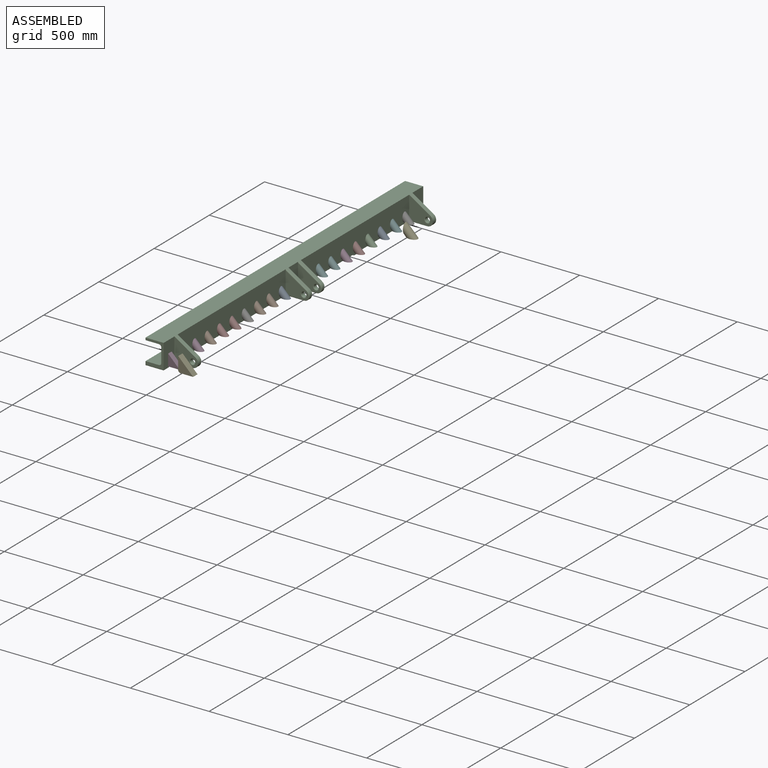
[diagram: assembled view]
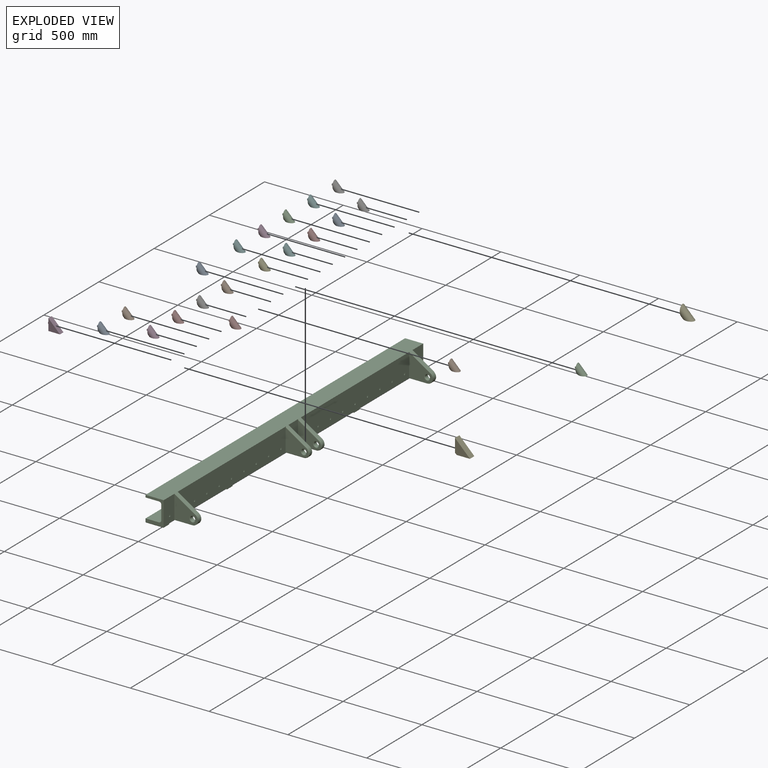
[diagram: exploded view]
GUIDED TOUR — MATED ASSEMBLY (Onshape document 05afbd872c7fb08d4eaf8b2c, AutoMate assembly 05afbd872c7fb08d4eaf8b2c_276a8236e02694150c11657f_0c8fe8149d820ef2f70c6690_default)

This assembly has 24 components, labeled P0..P23 below (a component is one placed occurrence of a part; the same part can appear more than once), held together by 23 mates. A mate is a constraint between two components; its type names the relative motion it leaves free:
  FASTENED — locks the two components together rigidly (no relative motion),
  SLIDER — leaves translation along the listed axis free.
Axis/direction vectors are unit vectors and 'through' points are millimeter coordinates, both in the assembly's world frame.

MATES
  1. FASTENED "Fastened 13": P10 <-> P21, direction (1.000, 0.000, 0.000) through (57.50, -839.80, 44.70) mm
  2. FASTENED "Fastened 5": P10 <-> P17, direction (1.000, 0.000, 0.000) through (57.50, -1959.80, 44.70) mm
  3. FASTENED "Fastened 7": P10 <-> P23, direction (1.000, 0.000, 0.000) through (57.50, -1735.80, 44.70) mm
  4. FASTENED "Fastened 17": P10 <-> P16, direction (1.000, 0.000, 0.000) through (57.50, -391.80, 44.70) mm
  5. FASTENED "Fastened 20": P10 <-> P5, direction (1.000, 0.000, 0.000) through (57.50, -279.80, 44.70) mm
  6. FASTENED "Fastened 15": P10 <-> P15, direction (1.000, 0.000, 0.000) through (57.50, -615.80, 44.70) mm
  7. SLIDER "Slider 1": P5 <-> P20, axis (-1.000, 0.000, 0.000) through (57.50, -279.80, 39.70) mm
  8. FASTENED "Fastened 18": P10 <-> P14, direction (1.000, 0.000, 0.000) through (57.50, -1623.80, 44.70) mm
  9. FASTENED "Fastened 8": P10 <-> P8, direction (1.000, 0.000, 0.000) through (57.50, -1287.80, 44.70) mm
  10. FASTENED "Fastened 9": P10 <-> P2, direction (1.000, 0.000, 0.000) through (57.50, -1175.80, 44.70) mm
  11. FASTENED "Fastened 14": P10 <-> P19, direction (1.000, 0.000, 0.000) through (57.50, -727.80, 44.70) mm
  12. FASTENED "Fastened 6": P10 <-> P7, direction (1.000, 0.000, 0.000) through (57.50, -1847.80, 44.70) mm
  13. FASTENED "Fastened 12": P10 <-> P13, direction (1.000, 0.000, 0.000) through (57.50, -951.80, 44.70) mm
  14. SLIDER "Slider 2": P11 <-> P4, axis (-1.000, 0.000, 0.000) through (57.50, -2295.80, 73.54) mm
  15. FASTENED "Fastened 19": P10 <-> P1, direction (1.000, 0.000, 0.000) through (57.50, -1511.80, 44.70) mm
  16. FASTENED "Fastened 22": P10 <-> P6, direction (1.000, 0.000, 0.000) through (57.50, -55.80, 44.70) mm
  17. FASTENED "Fastened 16": P10 <-> P18, direction (1.000, 0.000, 0.000) through (57.50, -503.80, 44.70) mm
  18. FASTENED "Fastened 21": P10 <-> P22, direction (1.000, 0.000, 0.000) through (57.50, -167.80, 44.70) mm
  19. FASTENED "Fastened 11": P10 <-> P12, direction (1.000, 0.000, 0.000) through (57.50, -1063.80, 44.70) mm
  20. FASTENED "Fastened 2": P10 <-> P11, direction (1.000, 0.000, 0.000) through (57.50, -2295.80, 44.70) mm
  21. FASTENED "Fastened 3": P10 <-> P0, direction (1.000, 0.000, 0.000) through (57.50, -2183.80, 44.70) mm
  22. FASTENED "Fastened 10": P10 <-> P9, direction (1.000, 0.000, 0.000) through (57.50, -1399.80, 44.70) mm
  23. FASTENED "Fastened 4": P10 <-> P3, direction (1.000, 0.000, 0.000) through (57.50, -2071.80, 44.70) mm

ASSEMBLY ORDER
  1. P23 — the base component [order verified]
  2. P14 [order verified]
  3. P9 [order verified]
  4. P8 [order verified]
  5. P12 [order verified]
  6. P13 [order verified]
  7. P21 [order verified]
  8. P19 [order verified]
  9. P15 [order verified]
  10. P18 [order verified]
  11. P16 [order verified]
  12. P5 [order verified]
  13. P22 [order verified]
  14. P7 [order verified]
  15. P17 [order verified]
  16. P3 [order verified]
  17. P10 [order verified]
  18. P2 [order verified]
  19. P1 [order verified]
  20. P0 [order verified]
  21. P6 [order verified]
  22. P20 [order verified]
  23. P4 [order verified]
  24. P11 [order verified]
Order-tag legend:
  [order verified] — this step's position reverses a verified removal order: the component was checked to insert without passing through the ones already placed.

Of the 24 components, 20 carry the full construction recipe — the FeatureScript program that regenerates the part's solid from scratch; the rest are supplied as boundary geometry only.
Because this assembly has more than 12 components, the tour below covers the 12 most significant ones individually (every recipe-attached component first, then the largest by part volume), in assembly order; the remaining 12 are summarized together in a grouped section at the end.
Each toured component is shown spotlighted twice — in the assembled view, then in the exploded view, where a leader line traces a displaced component back to its assembled socket (saturated green if recipe-attached, orange if geometry-only; every other component desaturated gray) — followed by its recipe or geometry summary and the mates that hold it.
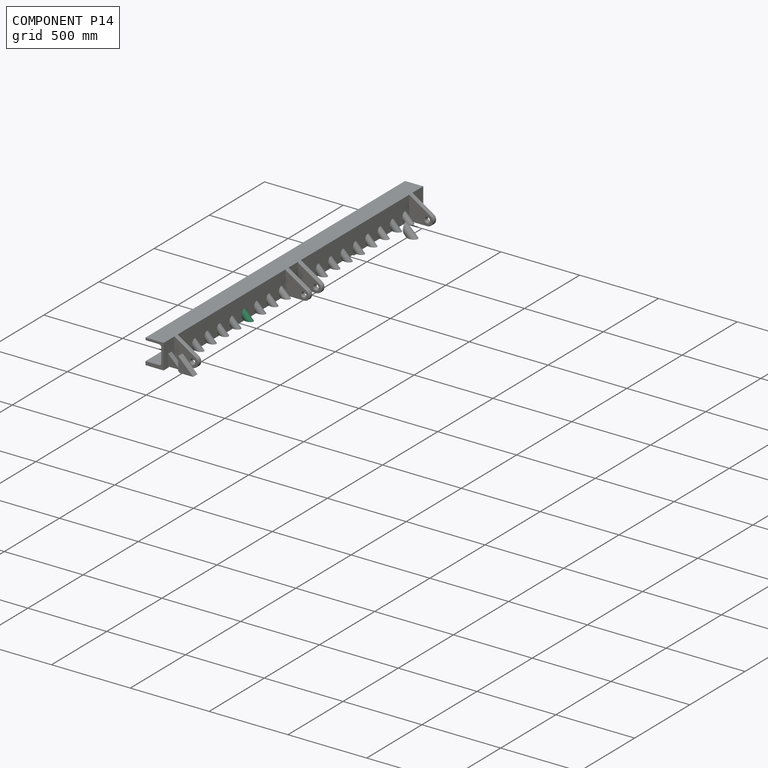
[diagram: component P14 — assembled]
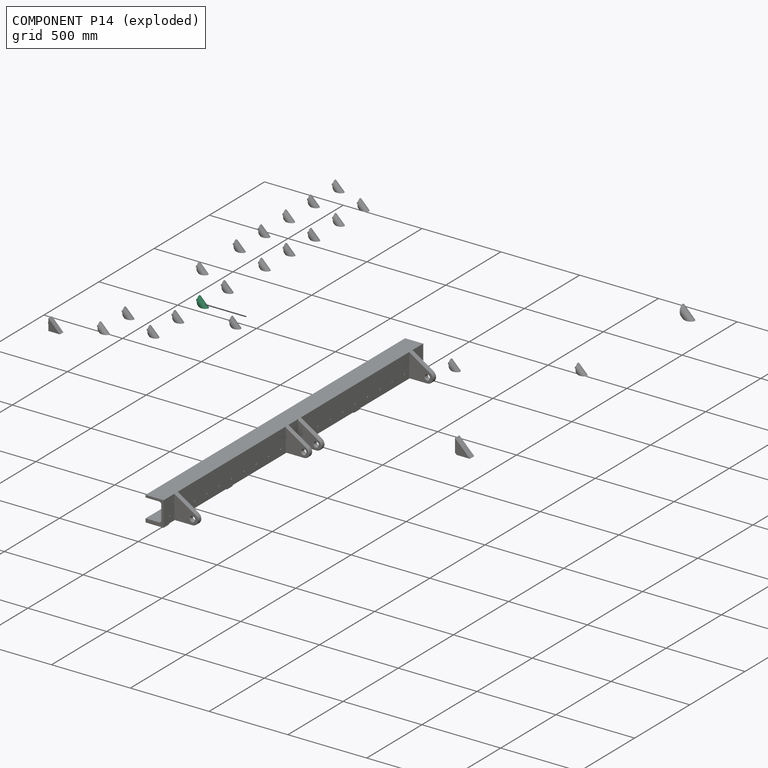
[diagram: component P14 — exploded]
COMPONENT P14 — same part as P0 (CADFS 00960571); its construction recipe is shown at P0.
Held by: FASTENED mate "Fastened 18" to P10.
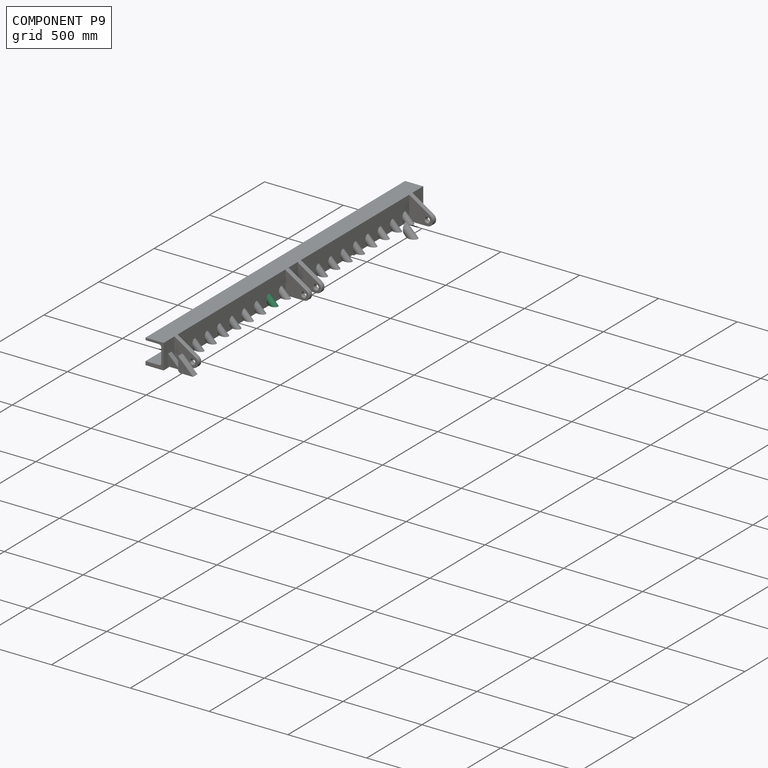
[diagram: component P9 — assembled]
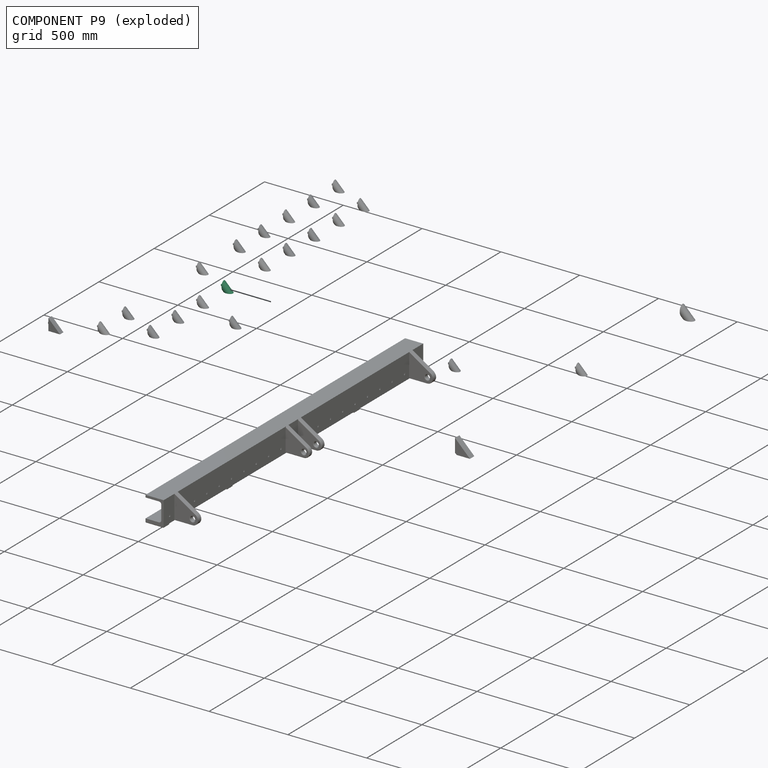
[diagram: component P9 — exploded]
COMPONENT P9 — same part as P0 (CADFS 00960571); its construction recipe is shown at P0.
Held by: FASTENED mate "Fastened 10" to P10.
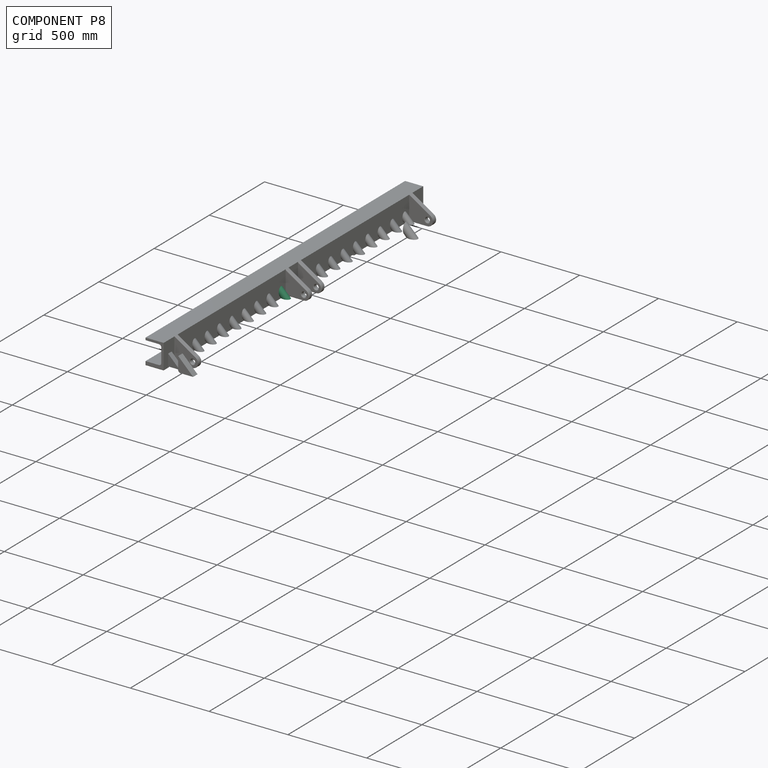
[diagram: component P8 — assembled]
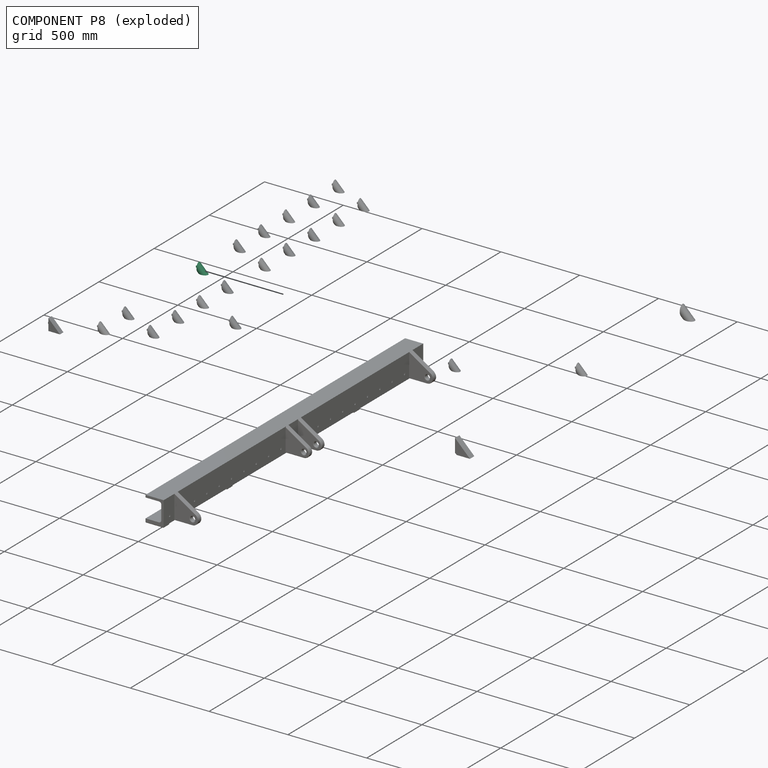
[diagram: component P8 — exploded]
COMPONENT P8 — same part as P0 (CADFS 00960571); its construction recipe is shown at P0.
Held by: FASTENED mate "Fastened 8" to P10.
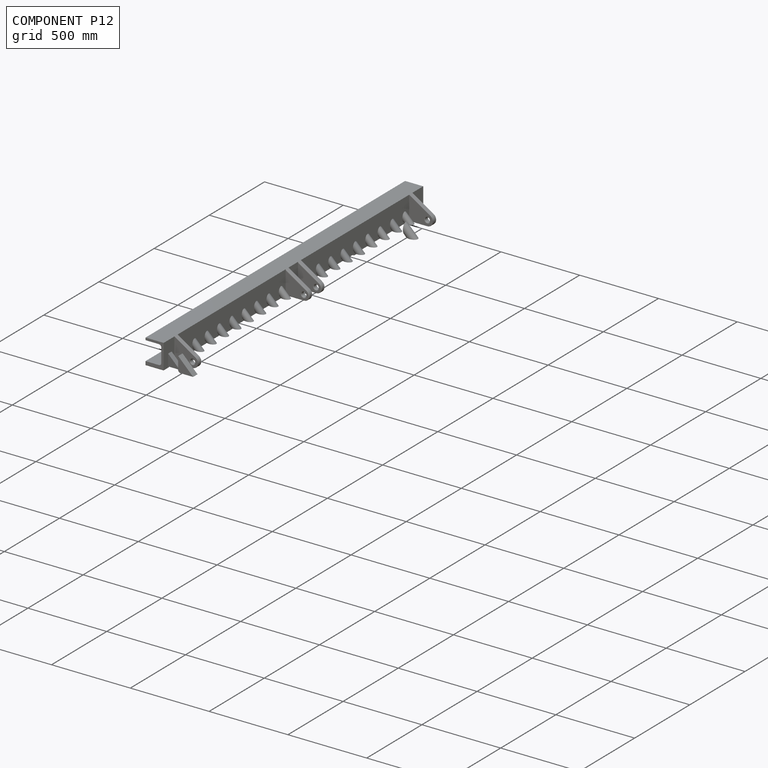
[diagram: component P12 — assembled]
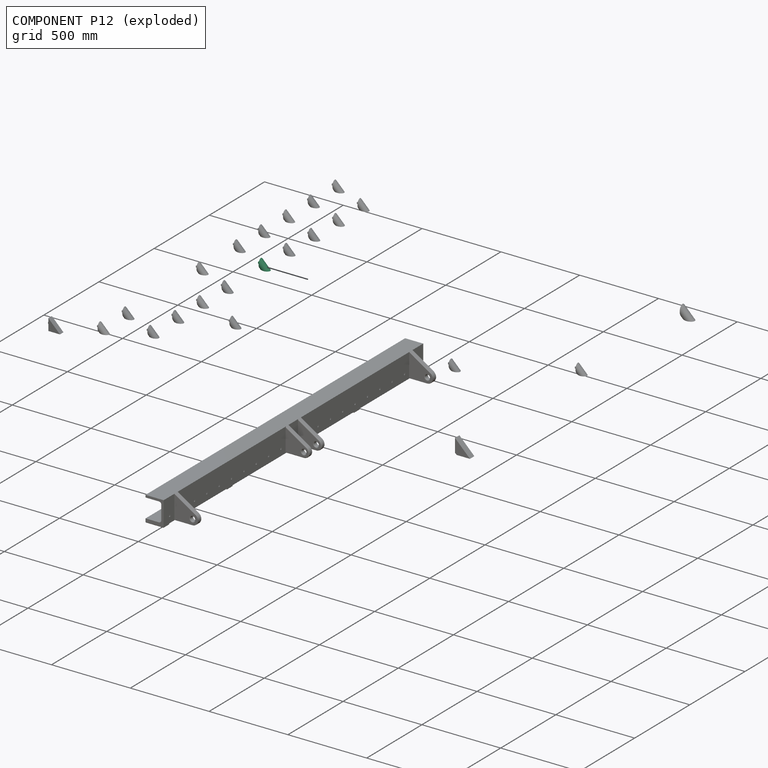
[diagram: component P12 — exploded]
COMPONENT P12 — same part as P0 (CADFS 00960571); its construction recipe is shown at P0.
Held by: FASTENED mate "Fastened 11" to P10.
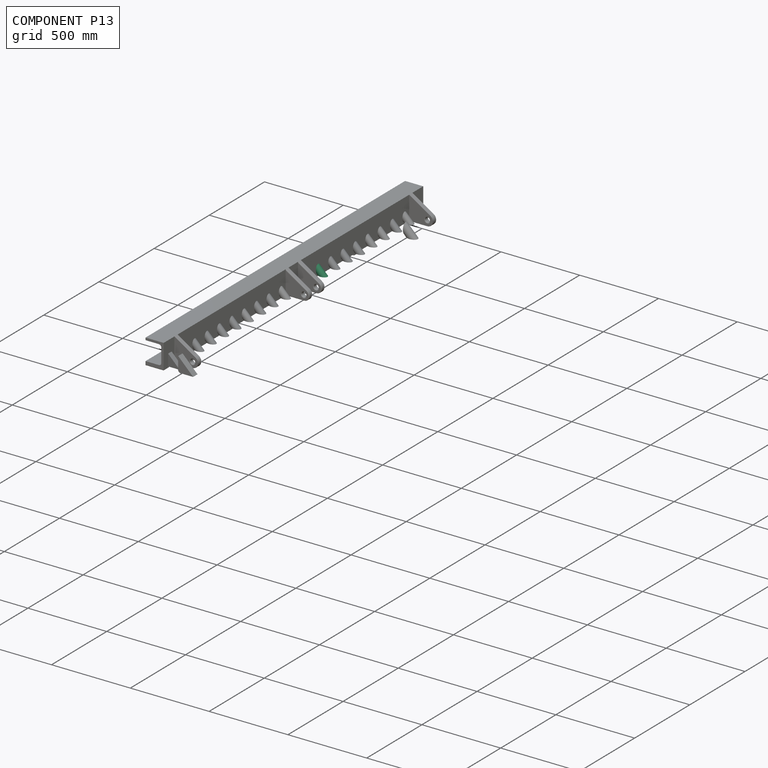
[diagram: component P13 — assembled]
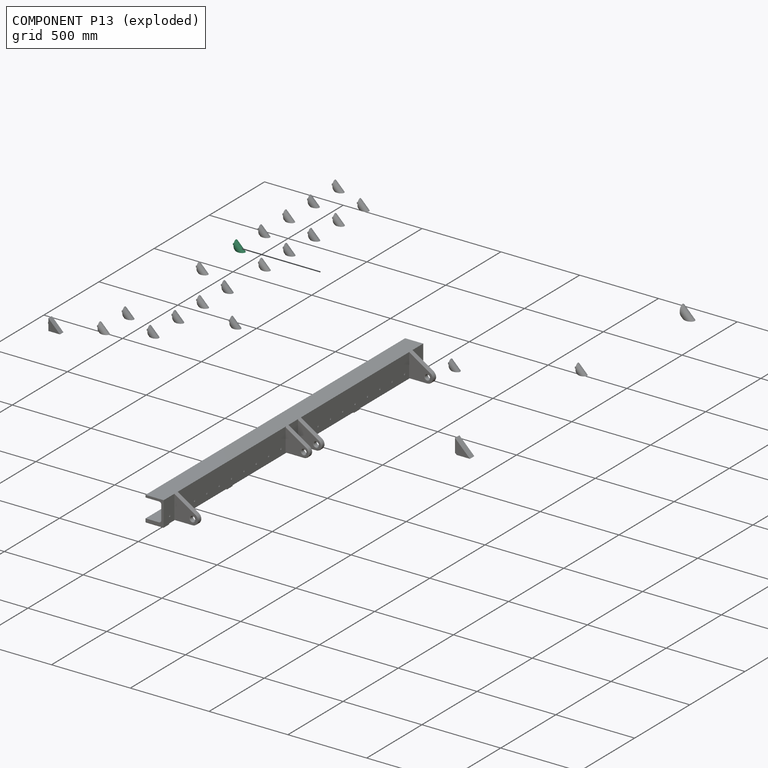
[diagram: component P13 — exploded]
COMPONENT P13 — same part as P0 (CADFS 00960571); its construction recipe is shown at P0.
Held by: FASTENED mate "Fastened 12" to P10.
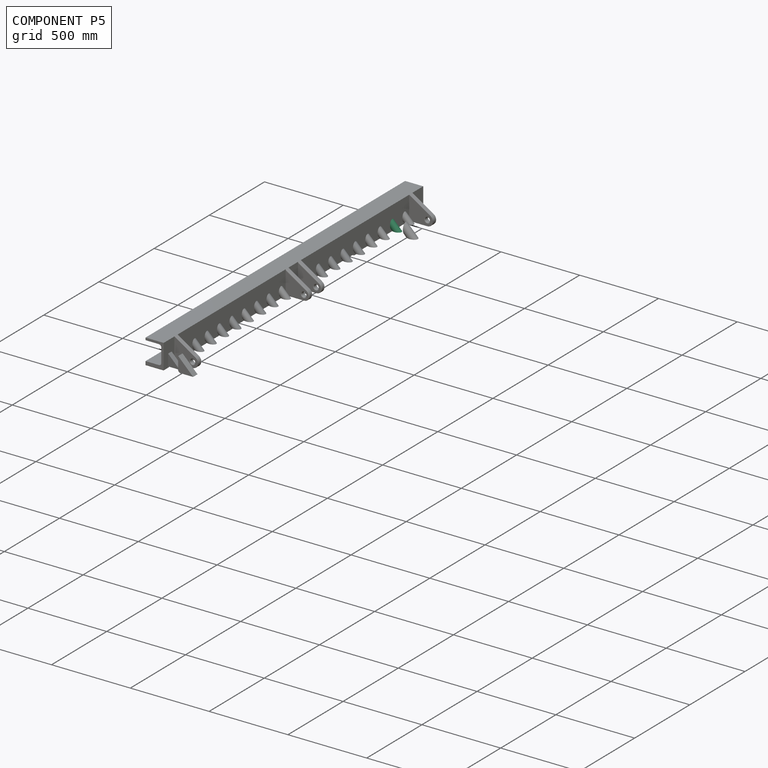
[diagram: component P5 — assembled]
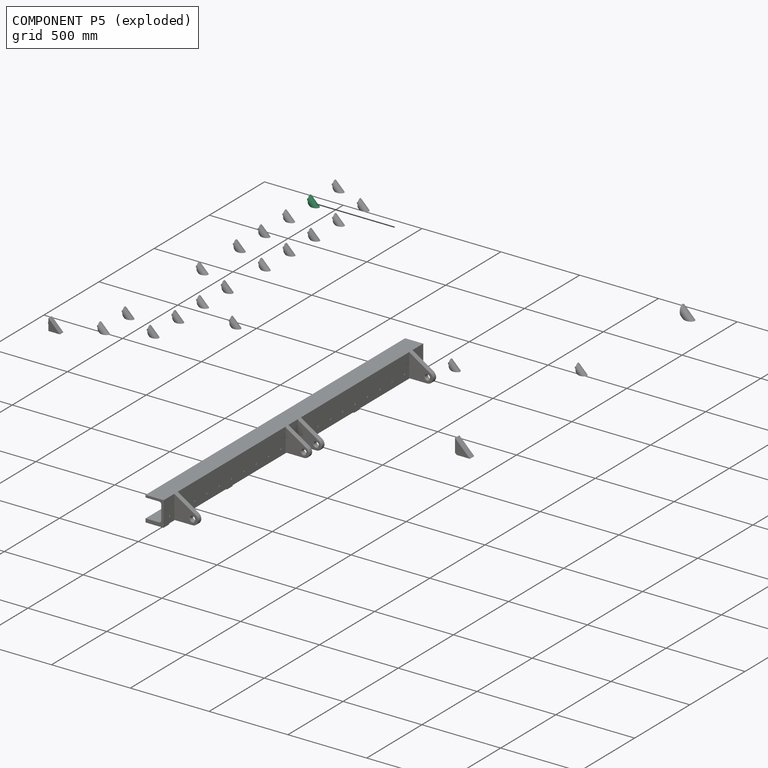
[diagram: component P5 — exploded]
COMPONENT P5 — same part as P0 (CADFS 00960571); its construction recipe is shown at P0.
Held by: FASTENED mate "Fastened 20" to P10; SLIDER mate "Slider 1" to P20.
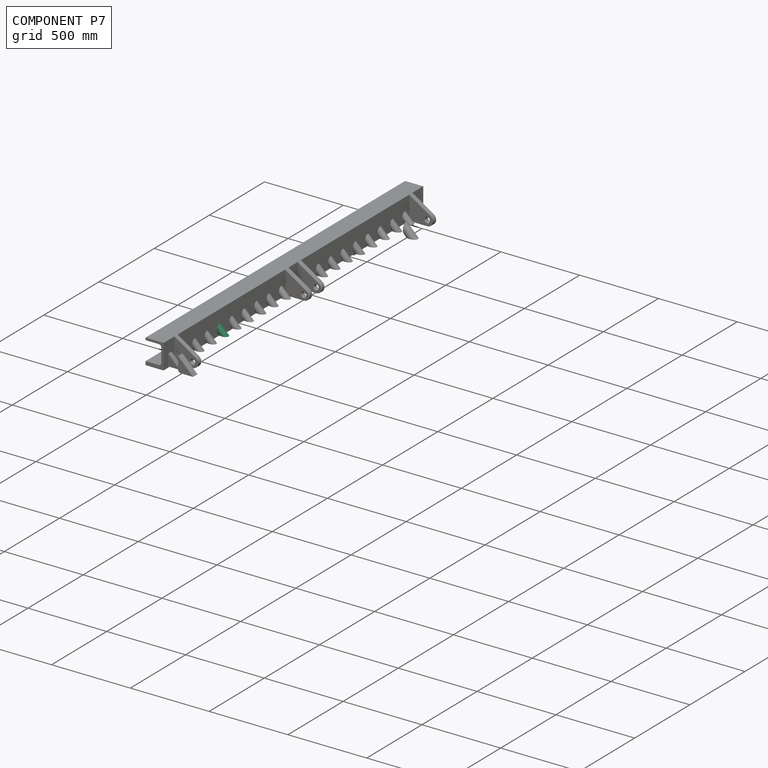
[diagram: component P7 — assembled]
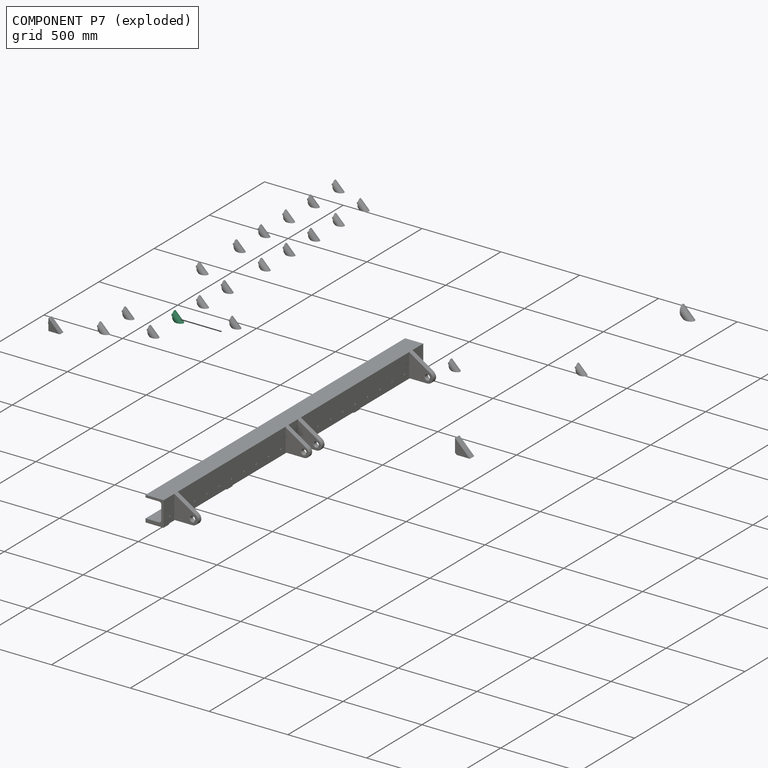
[diagram: component P7 — exploded]
COMPONENT P7 — same part as P0 (CADFS 00960571); its construction recipe is shown at P0.
Held by: FASTENED mate "Fastened 6" to P10.
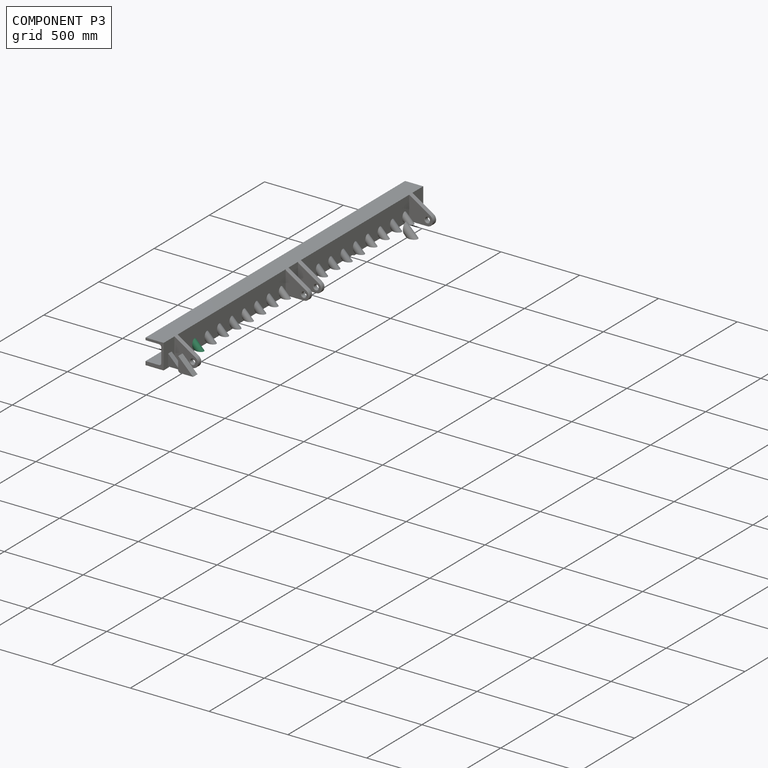
[diagram: component P3 — assembled]
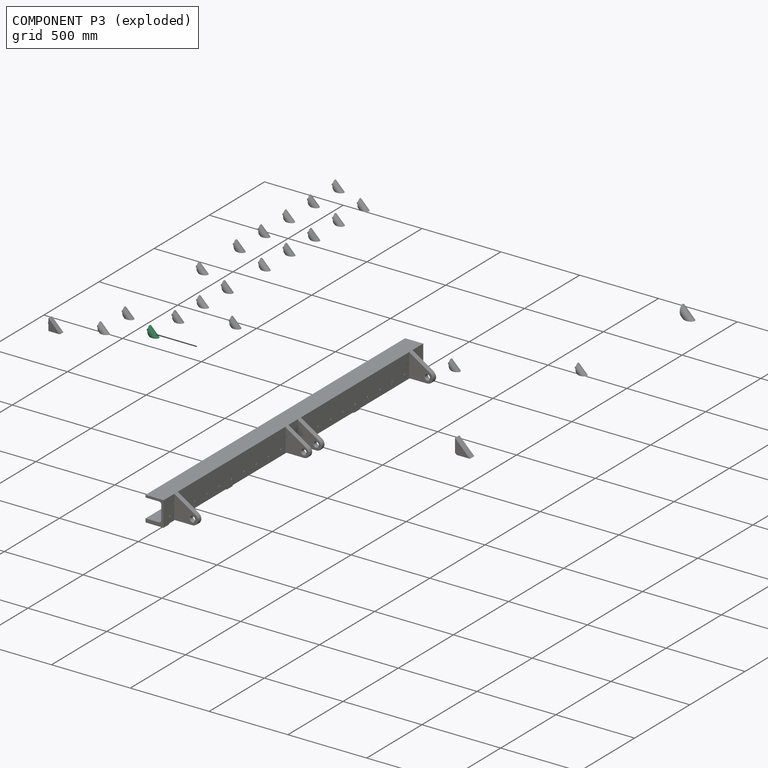
[diagram: component P3 — exploded]
COMPONENT P3 — same part as P0 (CADFS 00960571); its construction recipe is shown at P0.
Held by: FASTENED mate "Fastened 4" to P10.
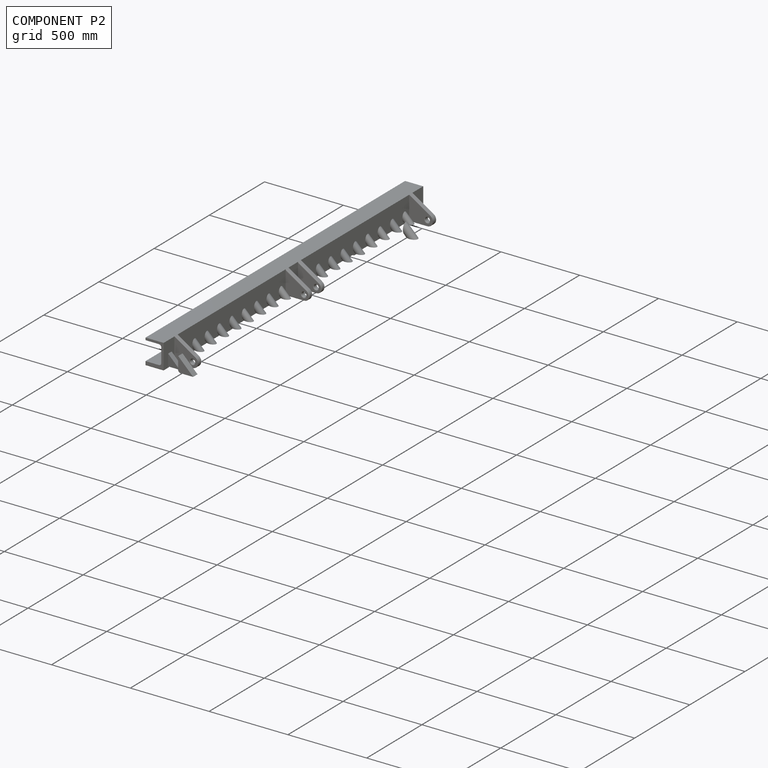
[diagram: component P2 — assembled]
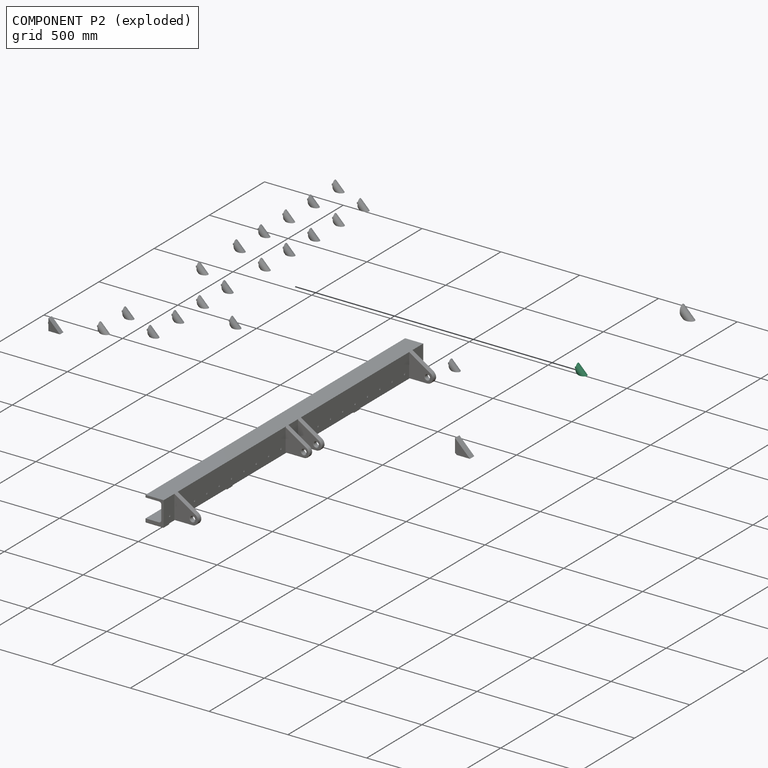
[diagram: component P2 — exploded]
COMPONENT P2 — same part as P0 (CADFS 00960571); its construction recipe is shown at P0.
Held by: FASTENED mate "Fastened 9" to P10.
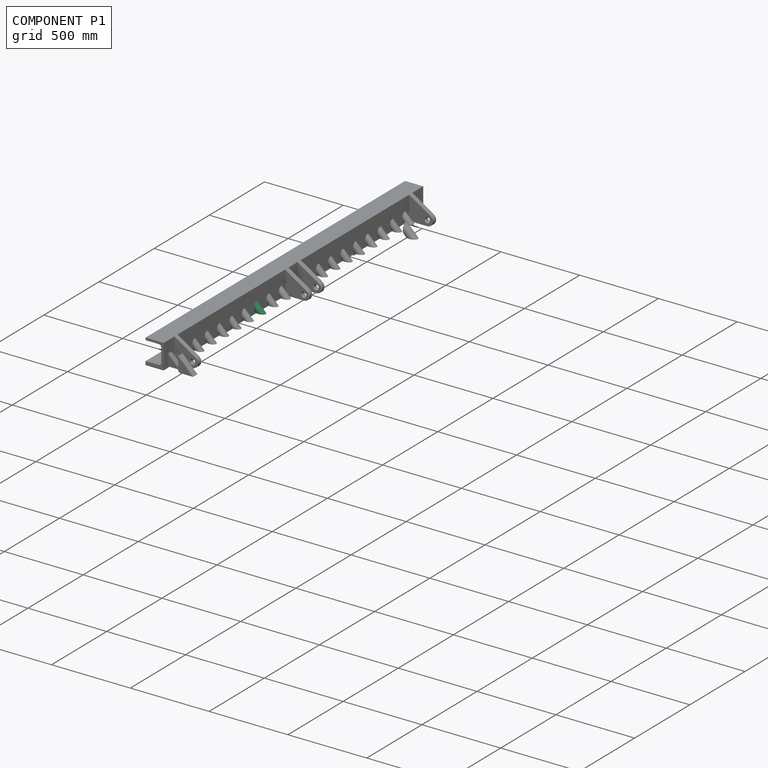
[diagram: component P1 — assembled]
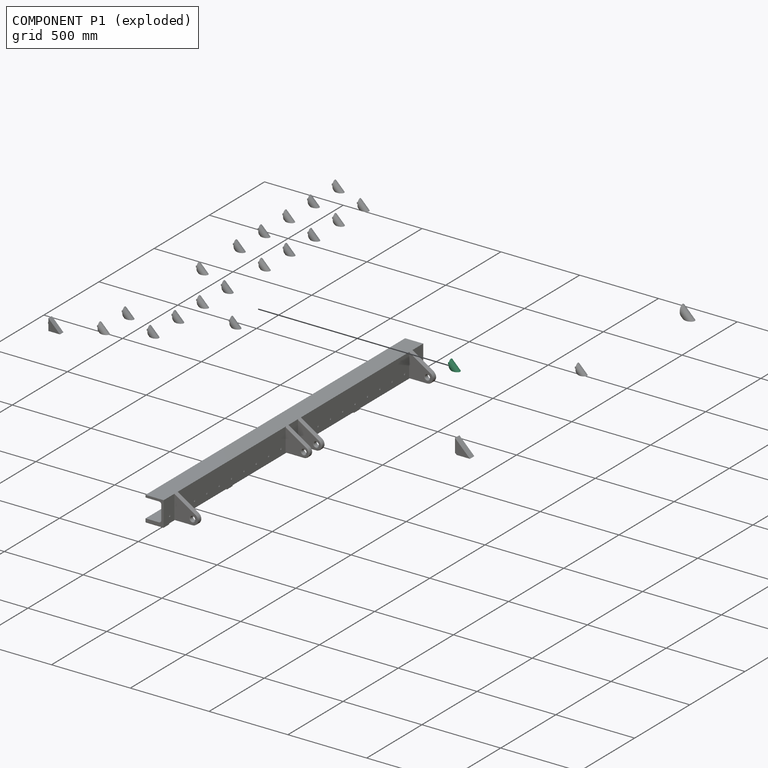
[diagram: component P1 — exploded]
COMPONENT P1 — same part as P0 (CADFS 00960571); its construction recipe is shown at P0.
Held by: FASTENED mate "Fastened 19" to P10.
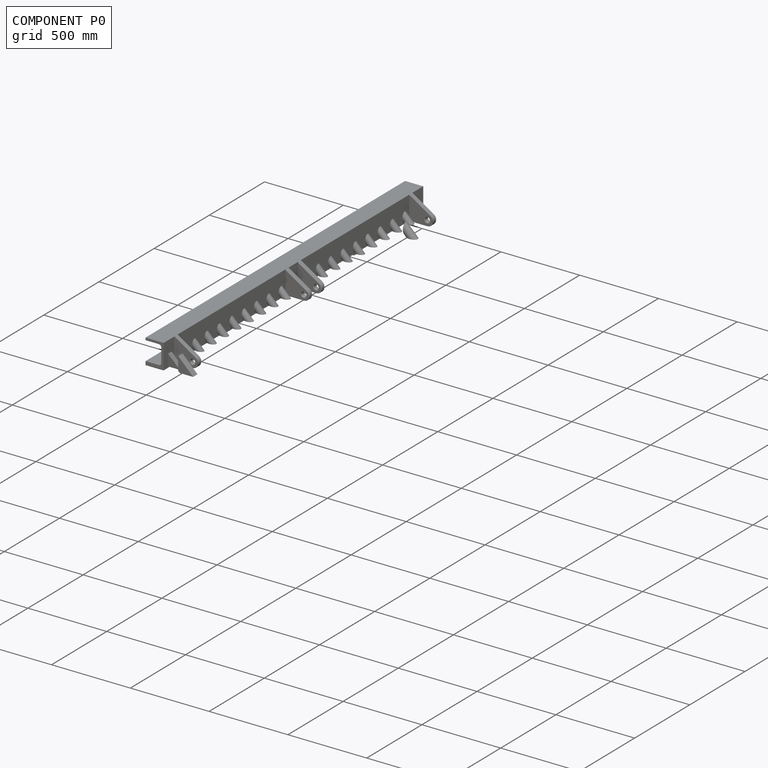
[diagram: component P0 — assembled]
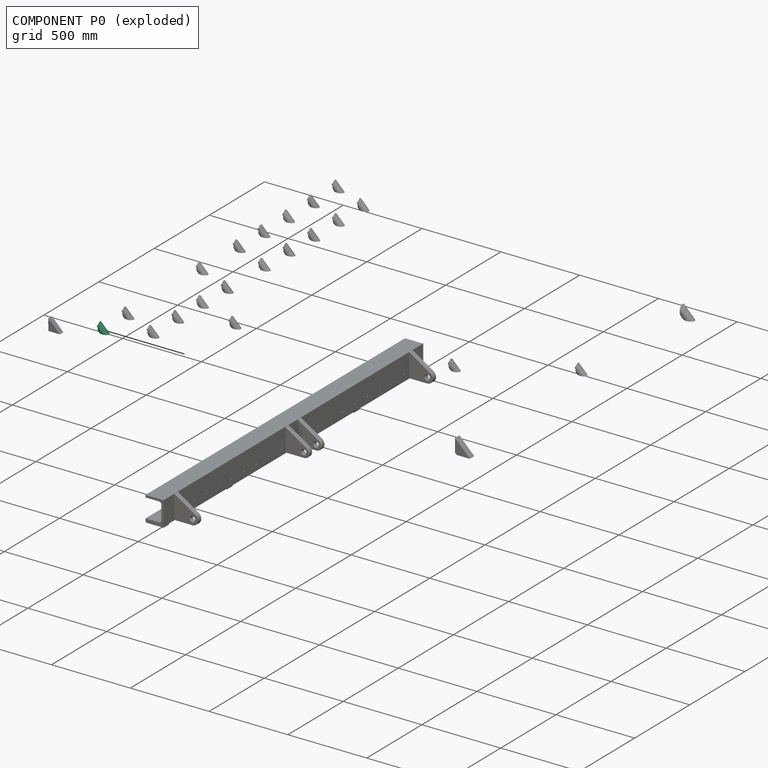
[diagram: component P0 — exploded]
COMPONENT P0 — recipe-attached (CADFS 00960571, mesh-verified: the recipe's output STEP matches this component's geometry to below the mesh-comparison resolution (tessellation chordal tolerance ~0.154 mm)).
Held by: FASTENED mate "Fastened 3" to P10.
Construction recipe (FeatureScript — the CAD program that rebuilds this solid; sketch coordinates are in the units given by the * unit suffixes, e.g. mm):

FeatureScript 1821;
import(path : "onshape/std/geometry.fs", version : "1821.0");
import(path : "onshape/std/common.fs", version : "1821.0");
const mm = millimeter;
const VERTEX = EntityType.VERTEX;
const EDGE = EntityType.EDGE;
const FACE = EntityType.FACE;
const BODY = EntityType.BODY;
function v(x, y){return vector(x, y);}
function OD(order){return orderDisambiguation(order);}
function OSD(set){return originalSetDisambiguation(set);}
function TD(topology){return topologyDisambiguation(topology);}
function TDD(query){return trueDependencyDisambiguation(query);}
function sQuery(a, b, c) {return sketchEntityQuery(a, b, c);}

annotation { "Feature Type Name" : "Feature", "Feature Type Description" : "" }
export const myFeature = defineFeature(function(context is Context, id is Id, definition is map)
    precondition{}
    {
        {
            var Q0;
            Q0=qCreatedBy(makeId("Top.planeOp"),FACE);
            var sketch = newSketch(context, id + "F0", { "sketchPlane" : qUnion([Q0])});
            skCircle(sketch, "E0", {"center": v(0, 0) * mm, "radius": 21 * mm});
            skSolve(sketch);
        }
        {
            var Q0;
            Q0=qCreatedBy(makeId("Right.planeOp"),FACE);
            var sketch = newSketch(context, id + "F1", { "sketchPlane" : qUnion([Q0])});
            skLineSegment(sketch, "E1.bottom", {"start": v(21, 50) * mm, "end": v(-21, 50) * mm});
            skLineSegment(sketch, "E1.top", {"start": v(21, -50) * mm, "end": v(-21, -50) * mm});
            skLineSegment(sketch, "E1.left", {"start": v(21, 50) * mm, "end": v(21, -50) * mm});
            skLineSegment(sketch, "E1.right", {"start": v(-21, 50) * mm, "end": v(-21, -50) * mm});
            skPoint(sketch, "E1.middle", {"position": v(0, 0) * mm});
            skLineSegment(sketch, "E2", {"start": v(-21, 50) * mm, "end": v(21, 8) * mm});
            skLineSegment(sketch, "E3", {"start": v(21, 8) * mm, "end": v(-21, -34) * mm});
            skSolve(sketch);
        }
        {
            var Q0;
            Q0 = qSketchRegion(id + "F0", true);
            extrude(context, id + "F2", {"entities" : qUnion([Q0]), "depth" : 100 * mm, "offsetDistance" : 25 * mm, "symmetric" : true});
        }
        {
            var Q0;
            {var subQ0=sQuery(id+"F1.wireOp",EDGE,"E1.bottom");Q0=makeQuery(id+"F1.imprint","IMPRINT",FACE,{"disambiguationData":[TD([[makeQuery(id+"F1.imprint","IMPRINT",EDGE,{"derivedFrom":subQ0}),1.0]])]});}
            var Q1;
            {var subQ0=sQuery(id+"F1.wireOp",EDGE,"E1.top");Q1=makeQuery(id+"F1.imprint","IMPRINT",FACE,{"disambiguationData":[TD([[makeQuery(id+"F1.imprint","IMPRINT",EDGE,{"derivedFrom":subQ0}),-1.0]])]});}
            extrude(context, id + "F3", {"entities" : qUnion([Q0, Q1]), "operationType" : NewBodyOperationType.REMOVE, "oppositeDirection" : true, "depth" : 42 * mm, "offsetDistance" : 25 * mm, "symmetric" : true});
        }
        {
            var Q0;
            Q0=makeQuery(id+"F3.boolean.opBoolean","COPY",FACE,{"derivedFrom":makeQuery(id+"F3.opExtrude","SWEPT_FACE",FACE,{"disambiguationData":[OSD([sQuery(id+"F1.wireOp",EDGE,"E3")])]})});
            var sketch = newSketch(context, id + "F4", { "sketchPlane" : qUnion([Q0])});
            skLineSegment(sketch, "E4.bottom", {"start": v(-5, -4.2) * mm, "end": v(5, -4.2) * mm});
            skLineSegment(sketch, "E4.top", {"start": v(-5, -14.2) * mm, "end": v(5, -14.2) * mm});
            skLineSegment(sketch, "E4.left", {"start": v(-5, -4.2) * mm, "end": v(-5, -14.2) * mm});
            skLineSegment(sketch, "E4.right", {"start": v(5, -4.2) * mm, "end": v(5, -14.2) * mm});
            skPoint(sketch, "E4.middle", {"position": v(0, -9.2) * mm});
            skSolve(sketch);
        }
        {
            var Q0;
            Q0 = qSketchRegion(id + "F4", true);
            extrude(context, id + "F5", {"entities" : qUnion([Q0]), "operationType" : NewBodyOperationType.ADD, "depth" : 15 * mm, "offsetDistance" : 25 * mm});
        }
    });
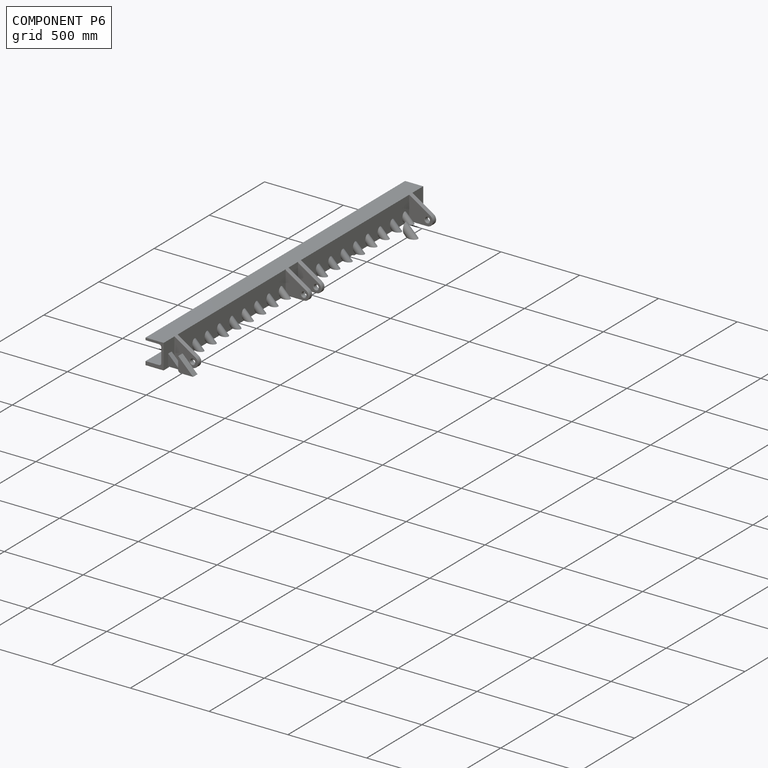
[diagram: component P6 — assembled]
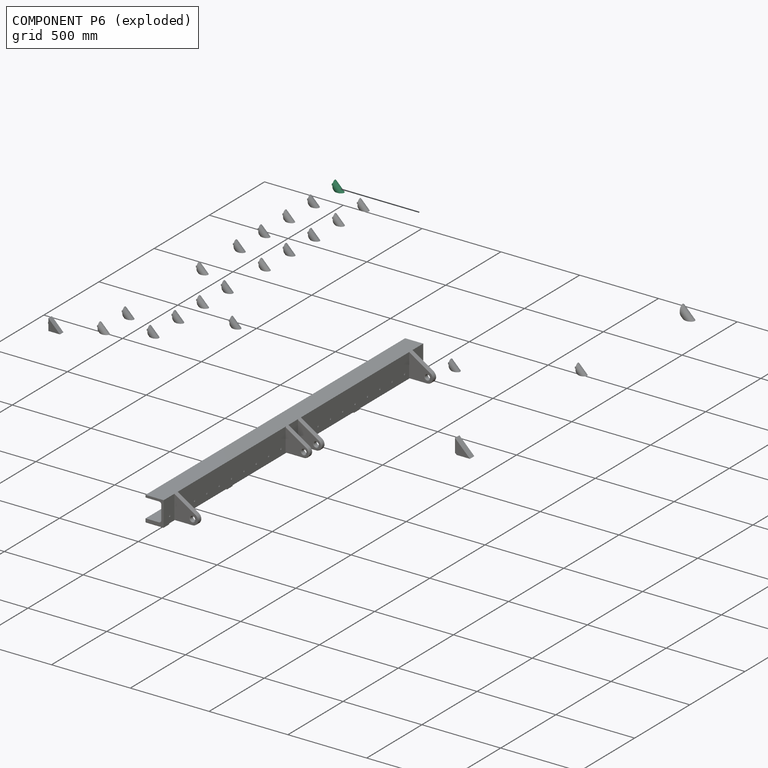
[diagram: component P6 — exploded]
COMPONENT P6 — same part as P0 (CADFS 00960571); its construction recipe is shown at P0.
Held by: FASTENED mate "Fastened 22" to P10.
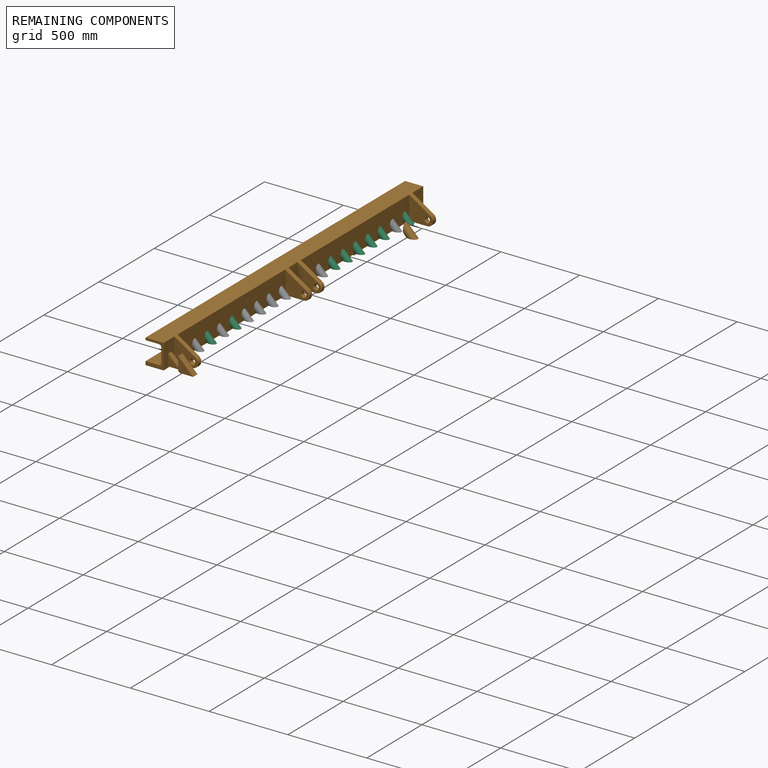
[diagram: remaining components — assembled]
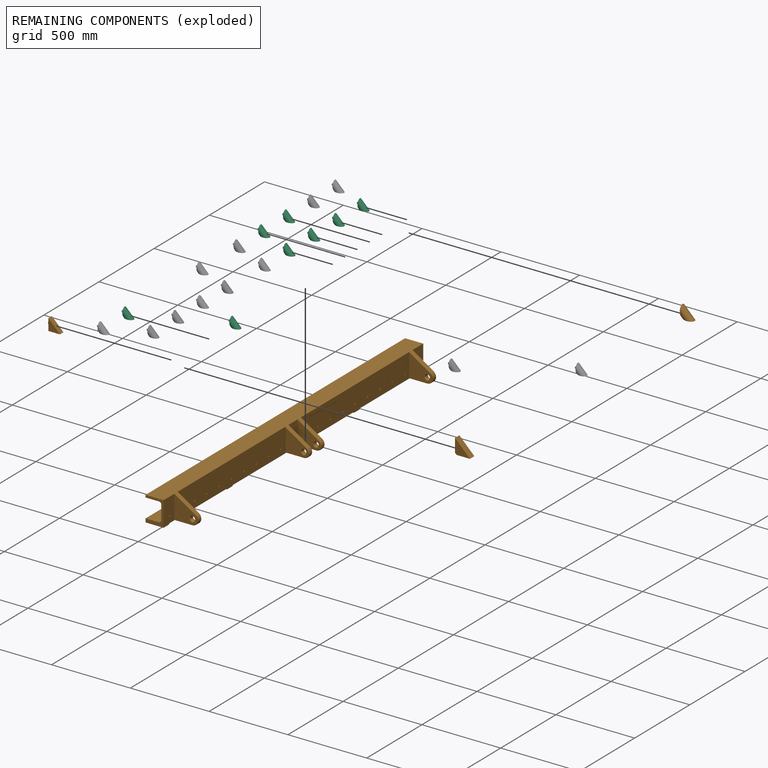
[diagram: remaining components — exploded]
REMAINING COMPONENTS (grouped) — the 12 components below fall outside the per-component tour by the significance rule stated above; both spotlight views highlight the whole group.
  P23: bounding box 84.6 x 42.0 x 42.0 mm, volume 59688 mm^3. Recipe-attached (CADFS 00960571; recipe not printed under the significance rule). Held by: FASTENED mate "Fastened 7" to P10.
  P21: bounding box 84.6 x 42.0 x 42.0 mm, volume 59688 mm^3. Recipe-attached (CADFS 00960571; recipe not printed under the significance rule). Held by: FASTENED mate "Fastened 13" to P10.
  P19: bounding box 84.6 x 42.0 x 42.0 mm, volume 59688 mm^3. Recipe-attached (CADFS 00960571; recipe not printed under the significance rule). Held by: FASTENED mate "Fastened 14" to P10.
  P15: bounding box 84.6 x 42.0 x 42.0 mm, volume 59688 mm^3. Recipe-attached (CADFS 00960571; recipe not printed under the significance rule). Held by: FASTENED mate "Fastened 15" to P10.
  P18: bounding box 84.6 x 42.0 x 42.0 mm, volume 59688 mm^3. Recipe-attached (CADFS 00960571; recipe not printed under the significance rule). Held by: FASTENED mate "Fastened 16" to P10.
  P16: bounding box 84.6 x 42.0 x 42.0 mm, volume 59688 mm^3. Recipe-attached (CADFS 00960571; recipe not printed under the significance rule). Held by: FASTENED mate "Fastened 17" to P10.
  P22: bounding box 84.6 x 42.0 x 42.0 mm, volume 59688 mm^3. Recipe-attached (CADFS 00960571; recipe not printed under the significance rule). Held by: FASTENED mate "Fastened 21" to P10.
  P17: bounding box 84.6 x 42.0 x 42.0 mm, volume 59688 mm^3. Recipe-attached (CADFS 00960571; recipe not printed under the significance rule). Held by: FASTENED mate "Fastened 5" to P10.
  P10: bounding box 2352.0 x 267.9 x 160.0 mm, volume 14524773 mm^3. Held by: FASTENED mate "Fastened 13" to P21; FASTENED mate "Fastened 5" to P17; FASTENED mate "Fastened 7" to P23; FASTENED mate "Fastened 17" to P16; FASTENED mate "Fastened 20" to P5; FASTENED mate "Fastened 15" to P15; FASTENED mate "Fastened 18" to P14; FASTENED mate "Fastened 8" to P8; FASTENED mate "Fastened 9" to P2; FASTENED mate "Fastened 14" to P19; FASTENED mate "Fastened 6" to P7; FASTENED mate "Fastened 12" to P13; FASTENED mate "Fastened 19" to P1; FASTENED mate "Fastened 22" to P6; FASTENED mate "Fastened 16" to P18; FASTENED mate "Fastened 21" to P22; FASTENED mate "Fastened 11" to P12; FASTENED mate "Fastened 2" to P11; FASTENED mate "Fastened 3" to P0; FASTENED mate "Fastened 10" to P9; FASTENED mate "Fastened 4" to P3.
  P20: bounding box 110.3 x 50.0 x 50.0 mm, volume 34683 mm^3. Held by: SLIDER mate "Slider 1" to P5.
  P4: bounding box 134.1 x 60.0 x 40.0 mm, volume 54569 mm^3. Held by: SLIDER mate "Slider 2" to P11.
  P11: bounding box 104.0 x 52.0 x 32.0 mm, volume 87528 mm^3. Held by: SLIDER mate "Slider 2" to P4; FASTENED mate "Fastened 2" to P10.
PROVENANCE & LICENSES
Assembly (occurrences, transforms, mates, per-part STEP geometry): AutoMate dataset, Zenodo record 7776208, CC0.
Construction recipes: CADFS (HuggingFace VladPyatov/CADFS, CC-BY-4.0, layered over the ABC dataset), FeatureScript reconstruction programs keyed by ABC model id.
Join: ABC meta listings map ABC model id -> Onshape documentId; within a shared document, parts are matched by geometric signature (bounding-box dims + volume at 0.1% relative tolerance, exact B-rep face/solid counts).
Verification: 20 of this assembly's 24 components carry a recipe attachment, and every attachment is mesh-verified: the CADFS STEP and the AutoMate member STEP were compared as meshes in their shared local frame (symmetric sampled-point-to-mesh distance); worst across the 20 attachments: below the mesh-comparison resolution (tessellation chordal tolerance ~0.154 mm) on a 103 mm part.
Renders: orthographic iso camera (az 35 / el 25); the floor grid conveys scale (grid pitch printed in each image; no ruler). In the exploded view each component is displaced by its stored offset vector: the offsets alone carry the explosion direction (mate normal/axis signs are not orientation cues and do not encode it), and separation distances are assigned per mate-chain, not proportionally to assembly-order depth.
